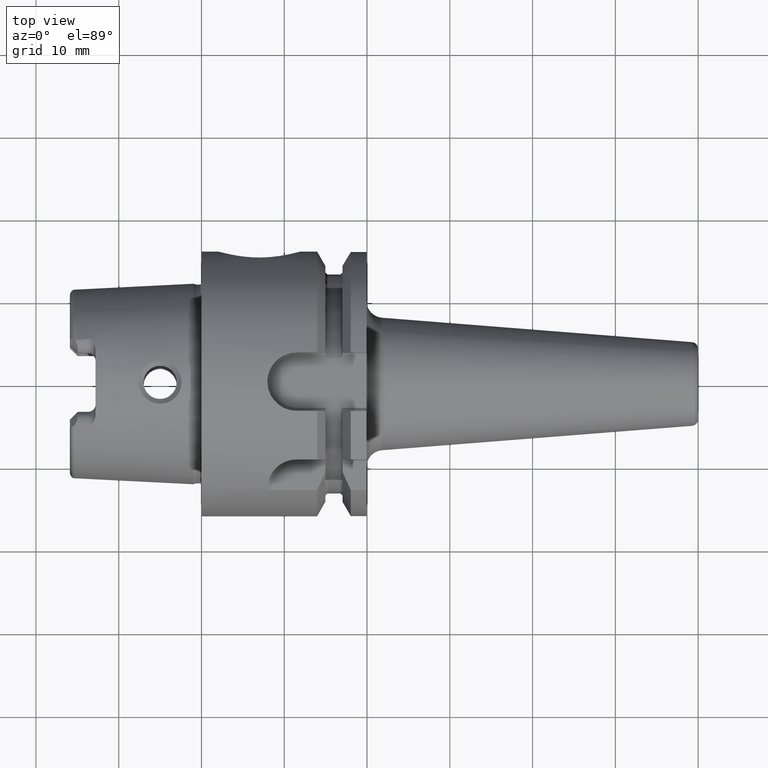
[diagram: clean part render]
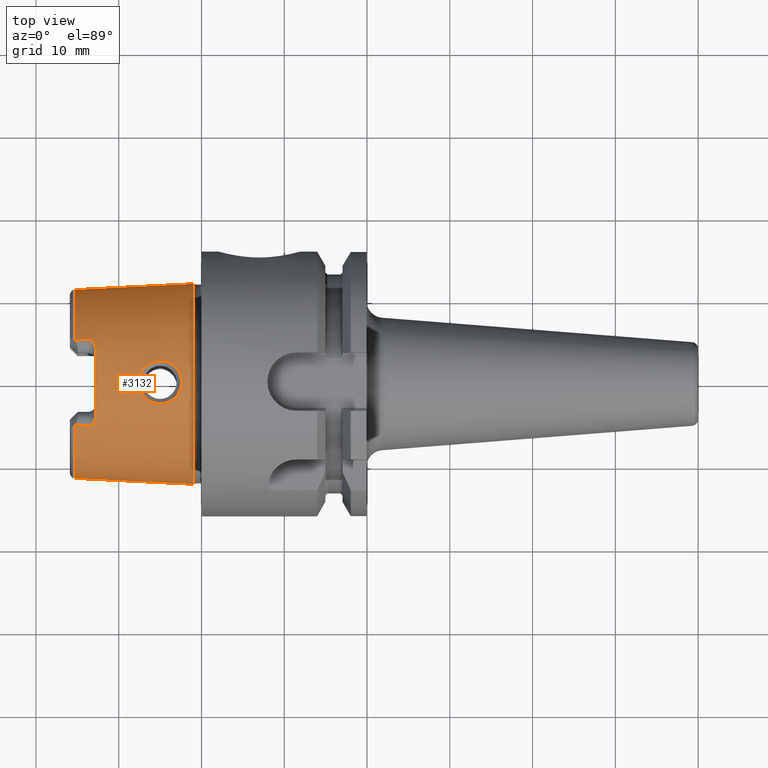
[diagram: same view with one face highlighted and labeled with its STEP entity id]
A machine part, top view. The second image highlights one B-rep face of the part: STEP entity #3132.
In plain terms, the highlighted conical surface has half-angle 2.868 deg.
Its self-contained STEP definition (entity closure, byte-faithful):
#2=CARTESIAN_POINT('',(-1.528050084758E1,-5.087212792253E0,1.02E1));
#3=CARTESIAN_POINT('',(-1.529699668159E1,-5.103454397372E0,1.019097598162E1));
#4=CARTESIAN_POINT('',(-1.531350440698E1,-5.119664096789E0,1.018191654313E1));
#5=CARTESIAN_POINT('',(-1.533002398309E1,-5.135841999599E0,1.017282180564E1));
#7=CARTESIAN_POINT('',(-1.528050084758E1,-5.087212792253E0,1.02E1));
#8=CARTESIAN_POINT('',(-1.501961192983E1,-5.116499783887E0,1.02E1));
#9=CARTESIAN_POINT('',(-1.449530554743E1,-5.174952612235E0,1.02E1));
#10=CARTESIAN_POINT('',(-1.396594406954E1,-5.233180710525E0,1.02E1));
#11=CARTESIAN_POINT('',(-1.37E1,-5.262242692701E0,1.02E1));
#13=CARTESIAN_POINT('',(-1.28E1,0.E0,0.E0));
#14=DIRECTION('',(1.E0,0.E0,0.E0));
#15=DIRECTION('',(0.E0,3.360277168818E-1,9.418520974586E-1));
#16=AXIS2_PLACEMENT_3D('',#13,#14,#15);
#18=CARTESIAN_POINT('',(-1.37E1,5.262242692701E0,1.02E1));
#19=CARTESIAN_POINT('',(-1.396593847897E1,5.233181321454E0,1.02E1));
#20=CARTESIAN_POINT('',(-1.449529436802E1,5.174953850050E0,1.02E1));
#21=CARTESIAN_POINT('',(-1.501960634108E1,5.116500411272E0,1.02E1));
#22=CARTESIAN_POINT('',(-1.528050084758E1,5.087212792253E0,1.02E1));
#24=CARTESIAN_POINT('',(-1.533002398309E1,5.135841999599E0,1.017282180564E1));
#25=CARTESIAN_POINT('',(-1.531350440698E1,5.119664096789E0,1.018191654313E1));
#26=CARTESIAN_POINT('',(-1.529699668159E1,5.103454397372E0,1.019097598162E1));
#27=CARTESIAN_POINT('',(-1.528050084758E1,5.087212792253E0,1.02E1));
#29=CARTESIAN_POINT('',(-1.E0,0.E0,0.E0));
#30=DIRECTION('',(1.E0,0.E0,0.E0));
#31=DIRECTION('',(0.E0,1.E0,0.E0));
#32=AXIS2_PLACEMENT_3D('',#29,#30,#31);
#34=CARTESIAN_POINT('',(-7.599306672667E0,-1.411617669899E-8,1.178302425766E1));
#35=CARTESIAN_POINT('',(-7.599429040280E0,1.615065310074E-1,1.178301812671E1));
#36=CARTESIAN_POINT('',(-7.569932547228E0,4.836208762442E-1,1.177810179011E1));
#37=CARTESIAN_POINT('',(-7.425573254024E0,9.801151560265E-1,1.175434843109E1));
#38=CARTESIAN_POINT('',(-7.181097770959E0,1.441086726907E0,1.171839428203E1));
#39=CARTESIAN_POINT('',(-6.854771338531E0,1.837564710911E0,1.167854199352E1));
#40=CARTESIAN_POINT('',(-6.459784689965E0,2.160502651025E0,1.164253920858E1));
#41=CARTESIAN_POINT('',(-6.004866011278E0,2.402482676082E0,1.161767895280E1));
#42=CARTESIAN_POINT('',(-5.511300881455E0,2.551392139218E0,1.161078504790E1));
#43=CARTESIAN_POINT('',(-4.996900503974E0,2.602676424844E0,1.162567410604E1));
#44=CARTESIAN_POINT('',(-4.481431208776E0,2.553468223312E0,1.166318227990E1));
#45=CARTESIAN_POINT('',(-3.985689065975E0,2.405064809131E0,1.172049630480E1));
#46=CARTESIAN_POINT('',(-3.528872243801E0,2.160953697677E0,1.179184777212E1));
#47=CARTESIAN_POINT('',(-3.134853702446E0,1.835715404022E0,1.186752387445E1));
#48=CARTESIAN_POINT('',(-2.810902512497E0,1.436296850306E0,1.193955883251E1));
#49=CARTESIAN_POINT('',(-2.570963844244E0,9.761359786221E-1,1.199865280979E1));
#50=CARTESIAN_POINT('',(-2.429471157917E0,4.818881300922E-1,1.203583655271E1));
#51=CARTESIAN_POINT('',(-2.400673533332E0,1.607607063064E-1,1.204349719124E1));
#52=CARTESIAN_POINT('',(-2.400700487410E0,9.833676003339E-9,1.204349584077E1));
#54=CARTESIAN_POINT('',(-2.400700487410E0,9.833676003339E-9,1.204349584077E1));
#55=CARTESIAN_POINT('',(-2.400601260891E0,-1.606015752470E-1,1.204350081229E1));
#56=CARTESIAN_POINT('',(-2.429455076092E0,-4.815121168201E-1,1.203584593639E1));
#57=CARTESIAN_POINT('',(-2.570641951886E0,-9.753985246161E-1,1.199873110377E1));
#58=CARTESIAN_POINT('',(-2.810759995094E0,-1.436190942752E0,1.193958652849E1));
#59=CARTESIAN_POINT('',(-3.135126907712E0,-1.836007188056E0,1.186746986917E1));
#60=CARTESIAN_POINT('',(-3.529887068932E0,-2.161719147282E0,1.179165578996E1));
#61=CARTESIAN_POINT('',(-3.986510987593E0,-2.405343080436E0,1.172039427970E1));
#62=CARTESIAN_POINT('',(-4.482265370634E0,-2.553654166699E0,1.166309893701E1));
#63=CARTESIAN_POINT('',(-4.997760545781E0,-2.602667807057E0,1.162563179684E1));
#64=CARTESIAN_POINT('',(-5.512003301626E0,-2.551224583416E0,1.161078576509E1));
#65=CARTESIAN_POINT('',(-6.005367934796E0,-2.402306576660E0,1.161769106733E1));
#66=CARTESIAN_POINT('',(-6.460342475822E0,-2.160070843938E0,1.164259067397E1));
#67=CARTESIAN_POINT('',(-6.854859865711E0,-1.837455386464E0,1.167855133125E1));
#68=CARTESIAN_POINT('',(-7.180800135073E0,-1.441432349914E0,1.171835612770E1));
#69=CARTESIAN_POINT('',(-7.425019709035E0,-9.813498940615E-1,1.175426909959E1));
#70=CARTESIAN_POINT('',(-7.569861366751E0,-4.844226824610E-1,1.177808234233E1));
#71=CARTESIAN_POINT('',(-7.599345526843E0,-1.618422591455E-1,1.178302231096E1));
#72=CARTESIAN_POINT('',(-7.599306672667E0,-1.411617669899E-8,1.178302425766E1));
#246=CARTESIAN_POINT('',(-1.312403888997E1,4.905E0,1.040843019171E1));
#247=CARTESIAN_POINT('',(-1.305105687643E1,4.784598688803E0,1.046921191039E1));
#248=CARTESIAN_POINT('',(-1.292931540317E1,4.547244349059E0,1.058263299612E1));
#249=CARTESIAN_POINT('',(-1.282190186017E1,4.196487872790E0,1.073207909365E1));
#250=CARTESIAN_POINT('',(-1.28E1,3.977945738738E0,1.081466368408E1));
#251=CARTESIAN_POINT('',(-1.28E1,3.871883970889E0,1.085250369505E1));
#301=CARTESIAN_POINT('',(-1.533002398309E1,0.E0,0.E0));
#302=DIRECTION('',(1.E0,0.E0,0.E0));
#303=DIRECTION('',(0.E0,1.E0,0.E0));
#304=AXIS2_PLACEMENT_3D('',#301,#302,#303);
#320=CARTESIAN_POINT('',(-1.533002398309E1,5.135841999599E0,1.017282180564E1));
#348=CARTESIAN_POINT('',(-1.533002398309E1,-5.135841999599E0,1.017282180564E1));
#364=CARTESIAN_POINT('',(-1.533002398309E1,0.E0,0.E0));
#365=DIRECTION('',(1.E0,0.E0,0.E0));
#366=DIRECTION('',(0.E0,-4.506803714873E-1,8.926853884522E-1));
#367=AXIS2_PLACEMENT_3D('',#364,#365,#366);
#491=DIRECTION('',(-9.987472158766E-1,5.003997180916E-2,0.E0));
#492=VECTOR('',#491,1.434799892834E1);
#493=CARTESIAN_POINT('',(-1.E0,-1.211372602740E1,0.E0));
#494=LINE('',#493,#492);
#500=DIRECTION('',(-9.987472158766E-1,-5.003997180916E-2,0.E0));
#501=VECTOR('',#500,1.434799892834E1);
#502=CARTESIAN_POINT('',(-1.E0,1.211372602740E1,0.E0));
#503=LINE('',#502,#501);
#2476=CARTESIAN_POINT('',(-1.28E1,-3.871883970889E0,1.085250369505E1));
#2477=CARTESIAN_POINT('',(-1.28E1,-3.977940400624E0,1.081466558858E1));
#2478=CARTESIAN_POINT('',(-1.282189741352E1,-4.196476121513E0,
1.073208429787E1));
#2479=CARTESIAN_POINT('',(-1.292932748315E1,-4.547276572579E0,
1.058261873409E1));
#2480=CARTESIAN_POINT('',(-1.305106445582E1,-4.784611192824E0,
1.046920559803E1));
#2481=CARTESIAN_POINT('',(-1.312403888997E1,-4.905E0,1.040843019171E1));
#2548=CARTESIAN_POINT('',(-1.312403888997E1,-4.905E0,1.040843019171E1));
#2549=CARTESIAN_POINT('',(-1.315455836656E1,-4.955349186333E0,
1.038301261072E1));
#2550=CARTESIAN_POINT('',(-1.321966471256E1,-5.046252970241E0,
1.033565720505E1));
#2551=CARTESIAN_POINT('',(-1.332887808565E1,-5.152626445571E0,
1.027679066058E1));
#2552=CARTESIAN_POINT('',(-1.345074784472E1,-5.227483165980E0,
1.023195209180E1));
#2553=CARTESIAN_POINT('',(-1.357623240679E1,-5.264962475965E0,
1.020558016859E1));
#2554=CARTESIAN_POINT('',(-1.365903689452E1,-5.266719081453E0,1.02E1));
#2555=CARTESIAN_POINT('',(-1.37E1,-5.262242692701E0,1.02E1));
#2581=CARTESIAN_POINT('',(-1.37E1,5.262242692701E0,1.02E1));
#2582=CARTESIAN_POINT('',(-1.365873313697E1,5.266752275637E0,1.02E1));
#2583=CARTESIAN_POINT('',(-1.357548952150E1,5.265177757957E0,1.020551393378E1));
#2584=CARTESIAN_POINT('',(-1.344653269108E1,5.225502574004E0,1.023320020323E1));
#2585=CARTESIAN_POINT('',(-1.332851715643E1,5.152123548836E0,1.027706231071E1));
#2586=CARTESIAN_POINT('',(-1.321818615484E1,5.044623358848E0,1.033653725612E1));
#2587=CARTESIAN_POINT('',(-1.315414218140E1,4.954662589233E0,1.038335922282E1));
#2588=CARTESIAN_POINT('',(-1.312403888997E1,4.905E0,1.040843019171E1));
#2606=CARTESIAN_POINT('',(-1.E0,1.211372602740E1,0.E0));
#2607=CARTESIAN_POINT('',(-1.E0,-1.211372602740E1,0.E0));
#2608=VERTEX_POINT('',#2606);
#2609=VERTEX_POINT('',#2607);
#2610=CARTESIAN_POINT('',(-1.533002398309E1,1.139575256550E1,0.E0));
#2611=VERTEX_POINT('',#2610);
#2612=CARTESIAN_POINT('',(-1.533002398309E1,-1.139575256550E1,0.E0));
#2613=VERTEX_POINT('',#2612);
#2634=CARTESIAN_POINT('',(-1.28E1,3.871883970889E0,1.085250369505E1));
#2635=VERTEX_POINT('',#2634);
#2638=CARTESIAN_POINT('',(-1.37E1,5.262242692701E0,1.02E1));
#2639=VERTEX_POINT('',#2638);
#2640=CARTESIAN_POINT('',(-1.28E1,-3.871883970889E0,1.085250369505E1));
#2641=VERTEX_POINT('',#2640);
#2644=CARTESIAN_POINT('',(-1.37E1,-5.262242692701E0,1.02E1));
#2645=VERTEX_POINT('',#2644);
#2646=VERTEX_POINT('',#2588);
#2647=VERTEX_POINT('',#2548);
#2709=VERTEX_POINT('',#320);
#2727=VERTEX_POINT('',#348);
#2769=CARTESIAN_POINT('',(-1.528050084758E1,5.087212792253E0,1.02E1));
#2770=VERTEX_POINT('',#2769);
#2771=CARTESIAN_POINT('',(-1.528050084758E1,-5.087212792253E0,1.02E1));
#2772=VERTEX_POINT('',#2771);
#2947=VERTEX_POINT('',#34);
#2948=VERTEX_POINT('',#52);
#3091=CARTESIAN_POINT('',(-8.165011991543E0,0.E0,0.E0));
#3092=DIRECTION('',(1.E0,0.E0,0.E0));
#3093=DIRECTION('',(0.E0,-1.E0,0.E0));
#3094=AXIS2_PLACEMENT_3D('',#3091,#3092,#3093);
#3095=CONICAL_SURFACE('',#3094,1.175473929645E1,2.868277069010E0);
#3097=ORIENTED_EDGE('',*,*,#3096,.F.);
#3099=ORIENTED_EDGE('',*,*,#3098,.T.);
#3101=ORIENTED_EDGE('',*,*,#3100,.F.);
#3103=ORIENTED_EDGE('',*,*,#3102,.F.);
#3105=ORIENTED_EDGE('',*,*,#3104,.F.);
#3107=ORIENTED_EDGE('',*,*,#3106,.F.);
#3109=ORIENTED_EDGE('',*,*,#3108,.F.);
#3111=ORIENTED_EDGE('',*,*,#3110,.T.);
#3113=ORIENTED_EDGE('',*,*,#3112,.F.);
#3115=ORIENTED_EDGE('',*,*,#3114,.F.);
#3117=ORIENTED_EDGE('',*,*,#3116,.F.);
#3119=ORIENTED_EDGE('',*,*,#3118,.T.);
#3121=ORIENTED_EDGE('',*,*,#3120,.T.);
#3123=ORIENTED_EDGE('',*,*,#3122,.F.);
#3124=EDGE_LOOP('',(#3097,#3099,#3101,#3103,#3105,#3107,#3109,#3111,#3113,#3115,
#3117,#3119,#3121,#3123));
#3125=FACE_OUTER_BOUND('',#3124,.F.);
#3127=ORIENTED_EDGE('',*,*,#3126,.F.);
#3129=ORIENTED_EDGE('',*,*,#3128,.F.);
#3130=EDGE_LOOP('',(#3127,#3129));
#3131=FACE_BOUND('',#3130,.F.);
#3132=ADVANCED_FACE('',(#3125,#3131),#3095,.T.);
#6=B_SPLINE_CURVE_WITH_KNOTS('',3,(#2,#3,#4,#5),.UNSPECIFIED.,.F.,.F.,(4,4),(
0.E0,1.E0),.UNSPECIFIED.);
#12=B_SPLINE_CURVE_WITH_KNOTS('',3,(#7,#8,#9,#10,#11),.UNSPECIFIED.,.F.,.F.,(4,
1,4),(0.E0,5.E-1,1.E0),.UNSPECIFIED.);
#17=CIRCLE('',#16,1.152251369863E1);
#23=B_SPLINE_CURVE_WITH_KNOTS('',3,(#18,#19,#20,#21,#22),.UNSPECIFIED.,.F.,.F.,(
4,1,4),(0.E0,5.E-1,1.E0),.UNSPECIFIED.);
#28=B_SPLINE_CURVE_WITH_KNOTS('',3,(#24,#25,#26,#27),.UNSPECIFIED.,.F.,.F.,(4,
4),(0.E0,1.E0),.UNSPECIFIED.);
#33=CIRCLE('',#32,1.211372602740E1);
#53=B_SPLINE_CURVE_WITH_KNOTS('',3,(#34,#35,#36,#37,#38,#39,#40,#41,#42,#43,#44,
#45,#46,#47,#48,#49,#50,#51,#52),.UNSPECIFIED.,.F.,.F.,(4,1,1,1,1,1,1,1,1,1,1,1,
1,1,1,1,4),(0.E0,6.25E-2,1.25E-1,1.875E-1,2.5E-1,3.125E-1,3.75E-1,4.375E-1,
5.E-1,5.625E-1,6.25E-1,6.875E-1,7.5E-1,8.125E-1,8.75E-1,9.375E-1,1.E0),
.UNSPECIFIED.);
#73=B_SPLINE_CURVE_WITH_KNOTS('',3,(#54,#55,#56,#57,#58,#59,#60,#61,#62,#63,#64,
#65,#66,#67,#68,#69,#70,#71,#72),.UNSPECIFIED.,.F.,.F.,(4,1,1,1,1,1,1,1,1,1,1,1,
1,1,1,1,4),(0.E0,6.25E-2,1.25E-1,1.875E-1,2.5E-1,3.125E-1,3.75E-1,4.375E-1,
5.E-1,5.625E-1,6.25E-1,6.875E-1,7.5E-1,8.125E-1,8.75E-1,9.375E-1,1.E0),
.UNSPECIFIED.);
#252=B_SPLINE_CURVE_WITH_KNOTS('',3,(#246,#247,#248,#249,#250,#251),
.UNSPECIFIED.,.F.,.F.,(4,1,1,4),(0.E0,3.333333333333E-1,6.666666666667E-1,1.E0),
.UNSPECIFIED.);
#305=CIRCLE('',#304,1.139575256550E1);
#368=CIRCLE('',#367,1.139575256550E1);
#2482=B_SPLINE_CURVE_WITH_KNOTS('',3,(#2476,#2477,#2478,#2479,#2480,#2481),
.UNSPECIFIED.,.F.,.F.,(4,1,1,4),(0.E0,3.333333333333E-1,6.666666666667E-1,1.E0),
.UNSPECIFIED.);
#2556=B_SPLINE_CURVE_WITH_KNOTS('',3,(#2548,#2549,#2550,#2551,#2552,#2553,#2554,
#2555),.UNSPECIFIED.,.F.,.F.,(4,1,1,1,1,4),(0.E0,2.E-1,4.E-1,6.E-1,8.E-1,1.E0),
.UNSPECIFIED.);
#2589=B_SPLINE_CURVE_WITH_KNOTS('',3,(#2581,#2582,#2583,#2584,#2585,#2586,#2587,
#2588),.UNSPECIFIED.,.F.,.F.,(4,1,1,1,1,4),(0.E0,2.E-1,4.E-1,6.E-1,8.E-1,1.E0),
.UNSPECIFIED.);
#3096=EDGE_CURVE('',#2772,#2727,#6,.T.);
#3098=EDGE_CURVE('',#2772,#2645,#12,.T.);
#3100=EDGE_CURVE('',#2647,#2645,#2556,.T.);
#3102=EDGE_CURVE('',#2641,#2647,#2482,.T.);
#3104=EDGE_CURVE('',#2635,#2641,#17,.T.);
#3106=EDGE_CURVE('',#2646,#2635,#252,.T.);
#3108=EDGE_CURVE('',#2639,#2646,#2589,.T.);
#3110=EDGE_CURVE('',#2639,#2770,#23,.T.);
#3112=EDGE_CURVE('',#2709,#2770,#28,.T.);
#3114=EDGE_CURVE('',#2611,#2709,#305,.T.);
#3116=EDGE_CURVE('',#2608,#2611,#503,.T.);
#3118=EDGE_CURVE('',#2608,#2609,#33,.T.);
#3120=EDGE_CURVE('',#2609,#2613,#494,.T.);
#3122=EDGE_CURVE('',#2727,#2613,#368,.T.);
#3126=EDGE_CURVE('',#2947,#2948,#53,.T.);
#3128=EDGE_CURVE('',#2948,#2947,#73,.T.);